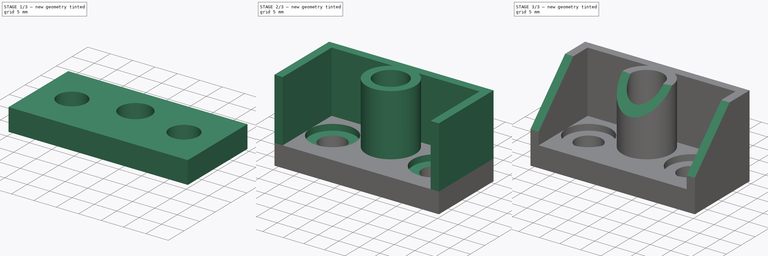
[diagram: build sequence overview — one tinted view per stage of 3, left to right]
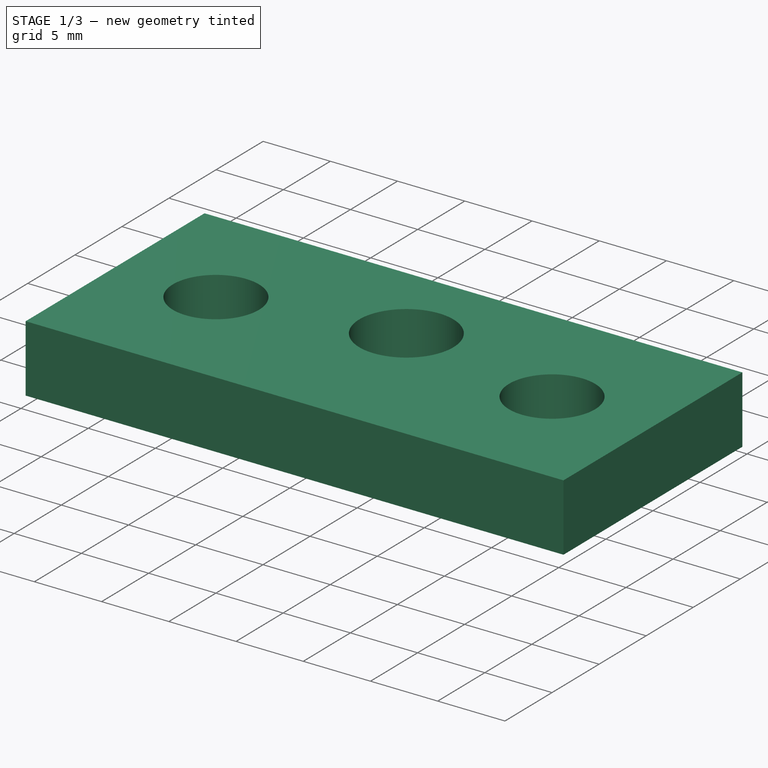
[diagram: stage 1 of 3 — iso view after this stage's code; geometry added in this stage tinted green]
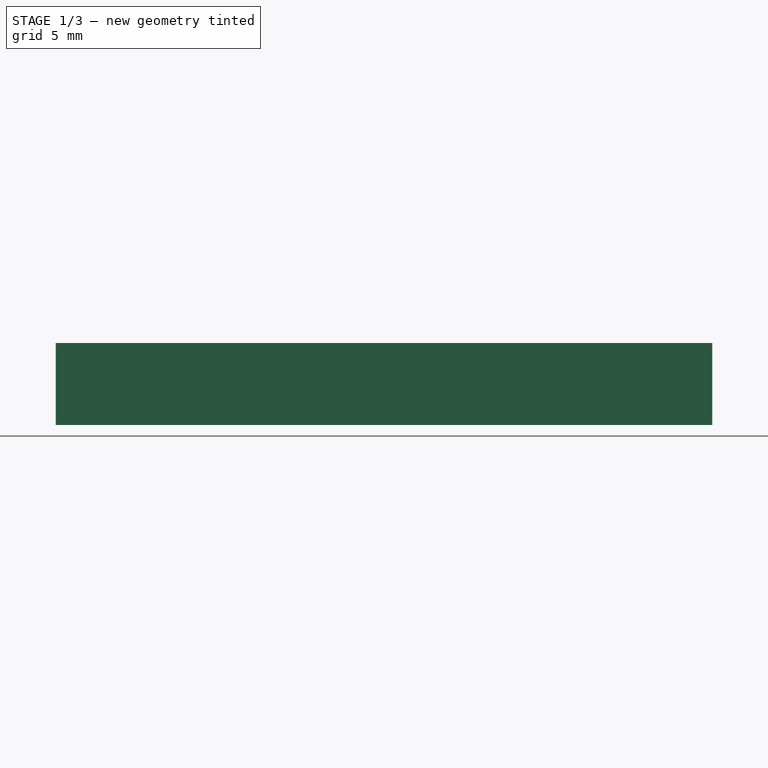
[diagram: stage 1 of 3 — front view after this stage's code; geometry added in this stage tinted green]
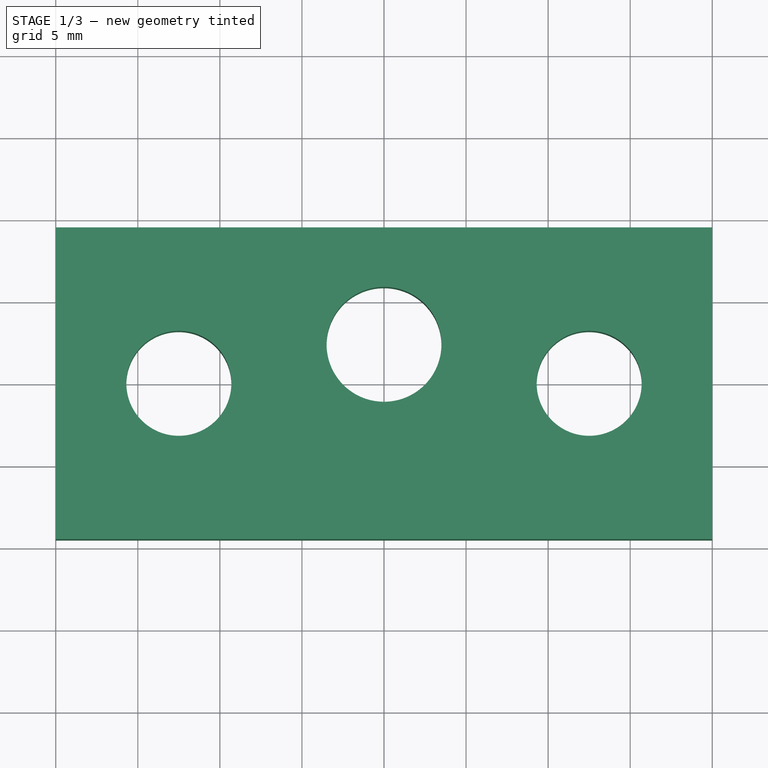
[diagram: stage 1 of 3 — top view after this stage's code; geometry added in this stage tinted green]
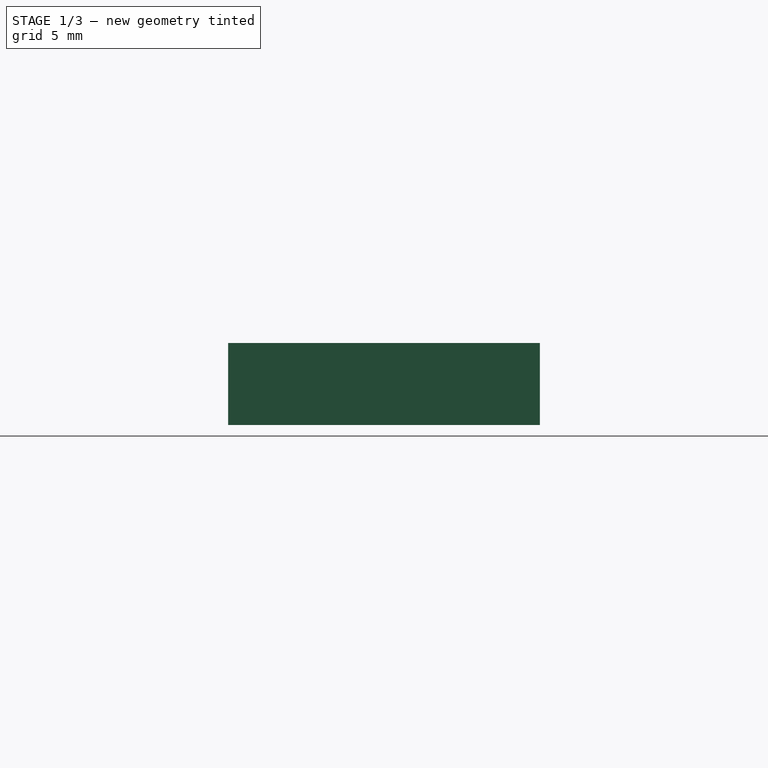
[diagram: stage 1 of 3 — right view after this stage's code; geometry added in this stage tinted green]
FCSTD DOCUMENT  (FreeCAD 0.17R7796 (Git))
Label: clamp_holder
License: CreativeCommons Attribution-ShareAlike
LicenseURL: http://creativecommons.org/licenses/by-sa/4.0/
objects: Sketcher::SketchObject×7, PartDesign::Pocket×5, PartDesign::Pad×2, PartDesign::Body×1, Part::Feature×1
note: 23 computed .brp shape members not serialized (recipe doc carries the construction recipe); baked Part::Feature solids carry a one-line shape summary decoded from their .brp

FEATURE [Sketcher::SketchObject] Sketch
  MapMode = 5
  Support = -> [XY_Plane]
  sketch-geometry (4):
    g0: LineSegment StartX=-20 StartY=-9.5 StartZ=0 EndX=20 EndY=-9.5 EndZ=0
    g1: LineSegment StartX=20 StartY=-9.5 StartZ=0 EndX=20 EndY=9.5 EndZ=0
    g2: LineSegment StartX=20 StartY=9.5 StartZ=0 EndX=-20 EndY=9.5 EndZ=0
    g3: LineSegment StartX=-20 StartY=9.5 StartZ=0 EndX=-20 EndY=-9.5 EndZ=0
  constraints (12):
    c: Coincident(g0,g1)
    c: Coincident(g1,g2)
    c: Coincident(g2,g3)
    c: Coincident(g3,g0)
    c: Horizontal(g0)
    c: Horizontal(g2)
    c: Vertical(g1)
    c: Vertical(g3)
    c: DistanceX(g2,g2) = 40
    c: DistanceY(g3,g3) = 19
    c: DistanceX(g2,g-1) = 20
    c: DistanceY(g-1,g2) = 9.5
FEATURE [PartDesign::Pad] Pad
  Length = 5
  Length2 = 100
  Profile = -> Sketch
  Type = 0
FEATURE [Sketcher::SketchObject] Sketch001
  MapMode = 5
  Placement = pos=(0,0,5) rot=(0,0,1;0rad)
  Support = -> [Pad]
  sketch-geometry (3):
    g0: Circle CenterX=-12.5 CenterY=0 CenterZ=0 NormalX=0 NormalY=0 NormalZ=1 Radius=3.2
    g1: Circle CenterX=12.5 CenterY=0 CenterZ=0 NormalX=0 NormalY=0 NormalZ=1 Radius=3.2
    g2: Circle CenterX=0 CenterY=2.375 CenterZ=0 NormalX=0 NormalY=0 NormalZ=1 Radius=3.5
  constraints (9):
    c: PointOnObject(g1,g-1)
    c: PointOnObject(g0,g-1)
    c: Radius(g1) = 3.2
    c: Equal(g1,g0)
    c: DistanceX(g0,g1) = 25
    c: DistanceX(g-1,g1) = 12.5
    c: DistanceY(g-1,g2) = 2.375
    c: PointOnObject(g2,g-2)
    c: Radius(g2) = 3.5
FEATURE [PartDesign::Pocket] Pocket
  BaseFeature = -> Pad
  Length = 5
  Profile = -> Sketch001
  Type = 0
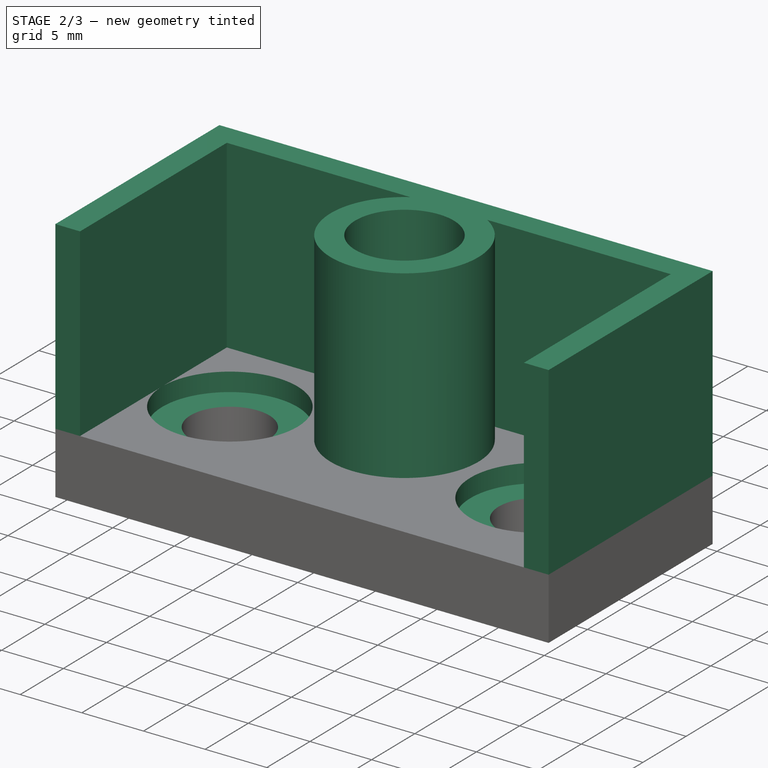
[diagram: stage 2 of 3 — iso view after this stage's code; geometry added in this stage tinted green]
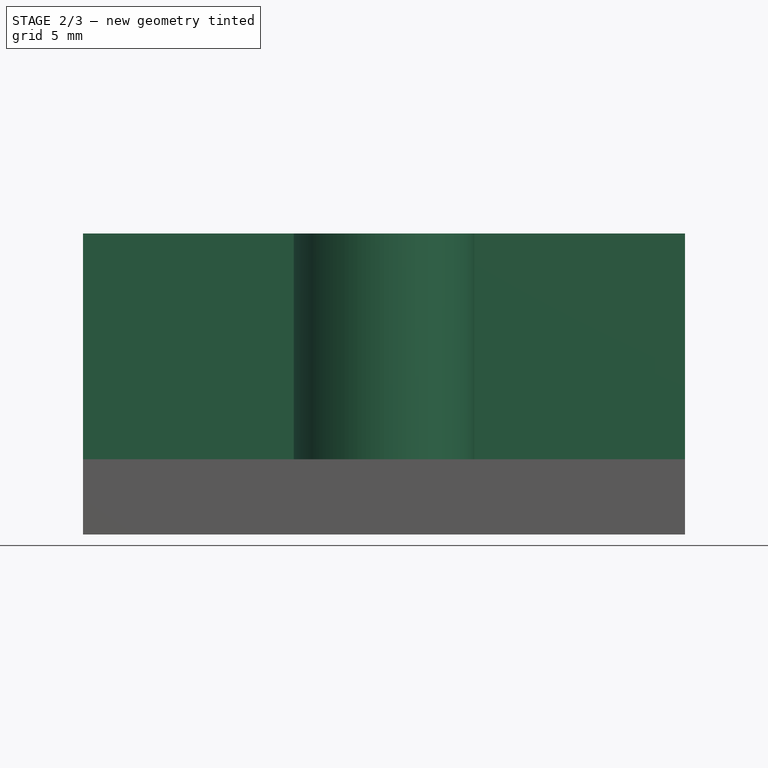
[diagram: stage 2 of 3 — front view after this stage's code; geometry added in this stage tinted green]
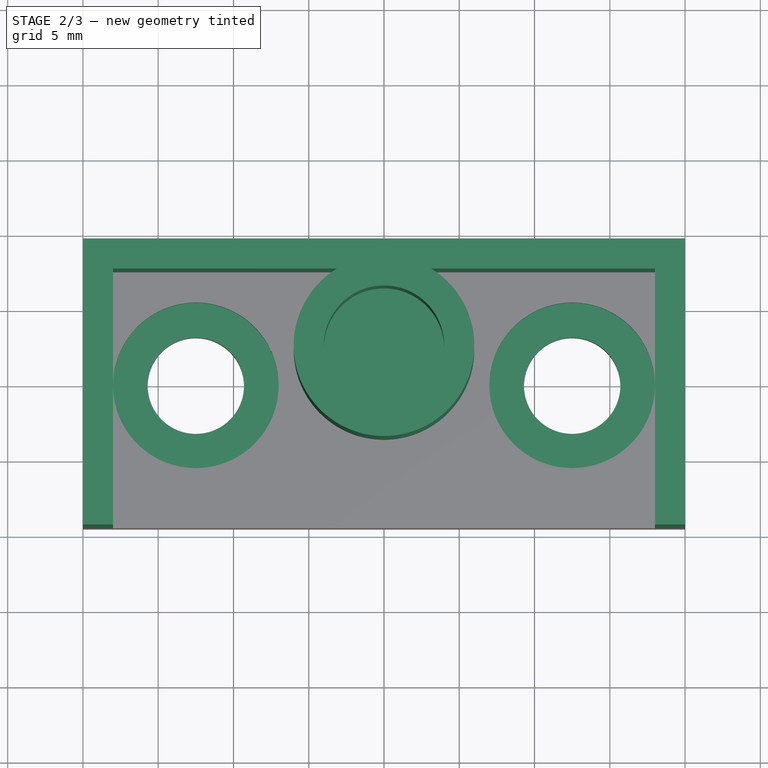
[diagram: stage 2 of 3 — top view after this stage's code; geometry added in this stage tinted green]
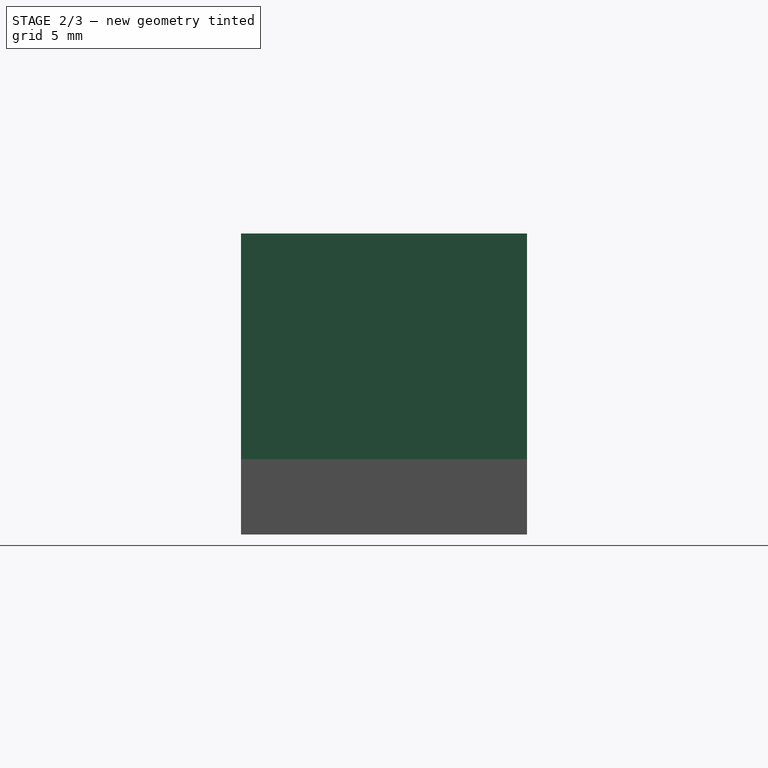
[diagram: stage 2 of 3 — right view after this stage's code; geometry added in this stage tinted green]
FEATURE [Sketcher::SketchObject] Sketch002
  ExternalGeometry = -> [Pocket]
  MapMode = 5
  Placement = pos=(0,0,5) rot=(0,0,1;0rad)
  Support = -> [Pocket]
  sketch-geometry (2):
    g0: Circle CenterX=-12.5 CenterY=0 CenterZ=0 NormalX=0 NormalY=0 NormalZ=1 Radius=5.5
    g1: Circle CenterX=12.5 CenterY=0 CenterZ=0 NormalX=0 NormalY=0 NormalZ=1 Radius=5.5
  constraints (4):
    c: Coincident(g1,g-4)
    c: Coincident(g0,g-3)
    c: Radius(g1) = 5.5
    c: Equal(g1,g0)
FEATURE [PartDesign::Pocket] Pocket001
  BaseFeature = -> Pocket
  Length = 1.5
  Profile = -> Sketch002
  Type = 0
FEATURE [Sketcher::SketchObject] Sketch003
  ExternalGeometry = -> [Pocket001]
  MapMode = 5
  Placement = pos=(0,0,5) rot=(0,0,1;0rad)
  Support = -> [Pocket001]
  sketch-geometry (10):
    g0: LineSegment StartX=-20 StartY=9.5 StartZ=0 EndX=-20 EndY=-9.5 EndZ=0
    g1: LineSegment StartX=-20 StartY=-9.5 StartZ=0 EndX=-18 EndY=-9.5 EndZ=0
    g2: LineSegment StartX=-18 StartY=-9.5 StartZ=0 EndX=-18 EndY=7.5 EndZ=0
    g3: LineSegment StartX=-18 StartY=7.5 StartZ=0 EndX=-3.12 EndY=7.5 EndZ=0
    g4: LineSegment StartX=18 StartY=7.5 StartZ=0 EndX=18 EndY=-9.5 EndZ=0
    g5: LineSegment StartX=18 StartY=-9.5 StartZ=0 EndX=20 EndY=-9.5 EndZ=0
    g6: LineSegment StartX=20 StartY=-9.5 StartZ=0 EndX=20 EndY=9.5 EndZ=0
    g7: LineSegment StartX=20 StartY=9.5 StartZ=0 EndX=-20 EndY=9.5 EndZ=0
    g8: ArcOfCircle CenterX=0 CenterY=2.375 CenterZ=0 NormalX=0 NormalY=0 NormalZ=1 Radius=6 StartAngle=2.11765 EndAngle=7.30713
    g9: LineSegment StartX=3.12 StartY=7.5 StartZ=0 EndX=18 EndY=7.5 EndZ=0
  constraints (28):
    c: Vertical(g0)
    c: Coincident(g0,g1)
    c: Horizontal(g1)
    c: Coincident(g1,g2)
    c: Vertical(g2)
    c: Coincident(g2,g3)
    c: Horizontal(g3)
    c: Coincident(g9,g4)
    c: Vertical(g4)
    c: Coincident(g4,g5)
    c: Coincident(g5,g6)
    c: Coincident(g6,g7)
    c: Horizontal(g7)
    c: Coincident(g0,g7)
    c: Coincident(g0,g-4)
    c: Coincident(g0,g-3)
    c: Coincident(g6,g-3)
    c: Vertical(g6)
    c: Horizontal(g5)
    c: Coincident(g5,g-4)
    c: DistanceX(g0,g1) = 2
    c: DistanceX(g4,g5) = 2
    c: DistanceY(g2,g0) = 2
    c: Coincident(g8,g-5)
    c: Radius(g8) = 6
    c: Coincident(g3,g8)
    c: Coincident(g9,g8)
    c: Tangent(g3,g9)
FEATURE [PartDesign::Pad] Pad001
  BaseFeature = -> Pocket001
  Length = 15
  Length2 = 100
  Profile = -> Sketch003
  Type = 0
FEATURE [Sketcher::SketchObject] Sketch004
  ExternalGeometry = -> [Pad001]
  MapMode = 5
  Placement = pos=(0,0,20) rot=(0,0,1;0rad)
  Support = -> [Pad001]
  sketch-geometry (1):
    g0: Circle CenterX=0 CenterY=2.375 CenterZ=0 NormalX=0 NormalY=0 NormalZ=1 Radius=4
  constraints (2):
    c: Coincident(g0,g-3)
    c: Radius(g0) = 4
FEATURE [PartDesign::Pocket] Pocket002
  BaseFeature = -> Pad001
  Length = 11.5
  Profile = -> Sketch004
  Type = 0
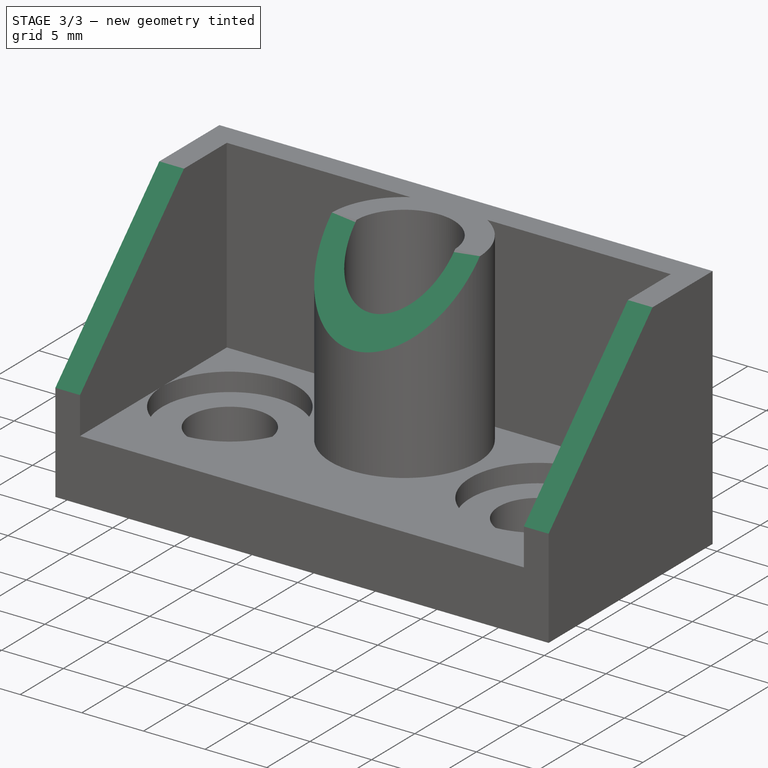
[diagram: stage 3 of 3 — iso view after this stage's code; geometry added in this stage tinted green]
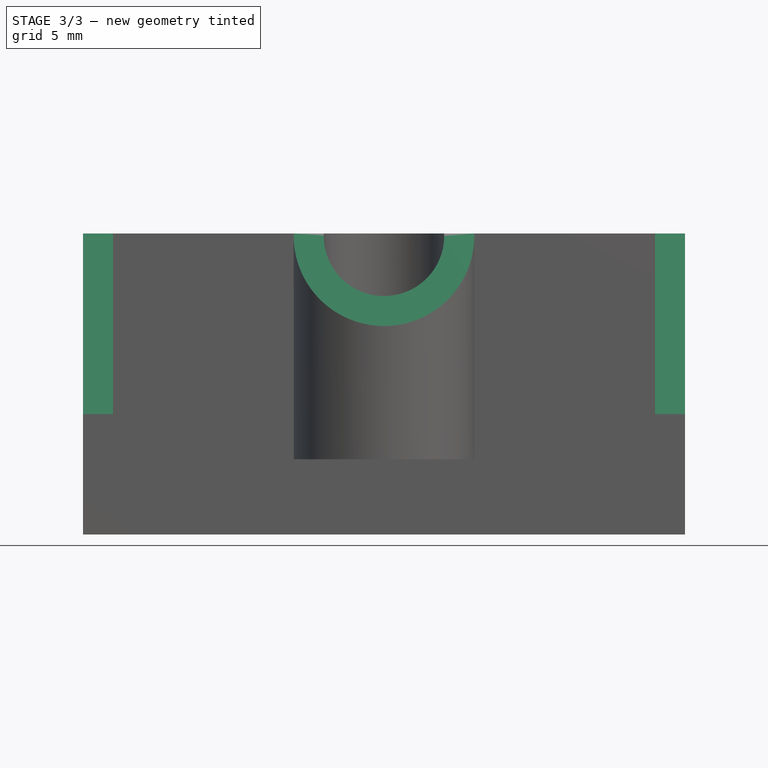
[diagram: stage 3 of 3 — front view after this stage's code; geometry added in this stage tinted green]
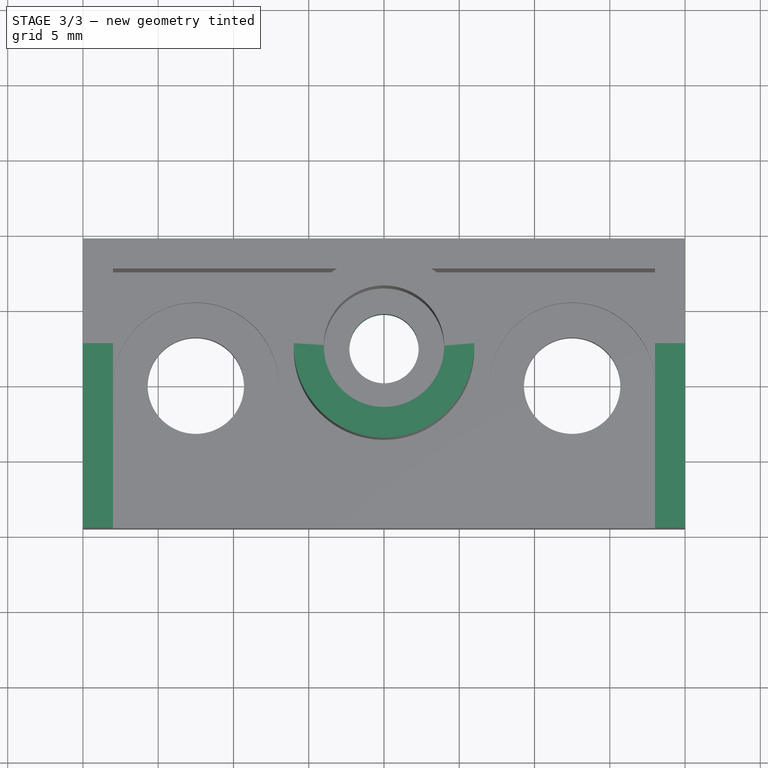
[diagram: stage 3 of 3 — top view after this stage's code; geometry added in this stage tinted green]
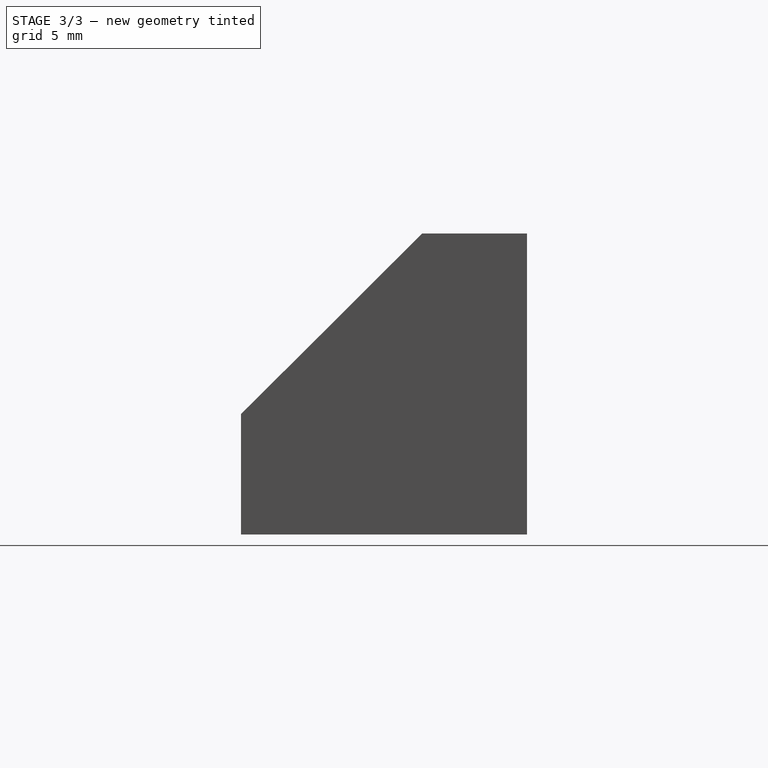
[diagram: stage 3 of 3 — right view after this stage's code; geometry added in this stage tinted green]
FEATURE [Sketcher::SketchObject] Sketch005
  ExternalGeometry = -> [Pocket002]
  MapMode = 5
  Placement = pos=(0,0,5) rot=(1,0,0;3.14159rad)
  Support = -> [Pocket002]
  sketch-geometry (1):
    g0: Circle CenterX=0 CenterY=-2.375 CenterZ=0 NormalX=0 NormalY=0 NormalZ=1 Radius=2.3
  constraints (2):
    c: Coincident(g0,g-3)
    c: Radius(g0) = 2.3
FEATURE [PartDesign::Pocket] Pocket003
  BaseFeature = -> Pocket002
  Length = 5
  Profile = -> Sketch005
  Type = 0
FEATURE [Sketcher::SketchObject] Sketch006
  ExternalGeometry = -> [Pocket003]
  MapMode = 5
  Placement = pos=(-20,0,0) rot=(0.57735,-0.57735,-0.57735;2.0944rad)
  Support = -> [Pocket003]
  sketch-geometry (3):
    g0: LineSegment StartX=-2.54159 StartY=20 StartZ=0 EndX=9.5 EndY=8 EndZ=0
    g1: LineSegment StartX=9.5 StartY=8 StartZ=0 EndX=9.5 EndY=20 EndZ=0
    g2: LineSegment StartX=9.5 StartY=20 StartZ=0 EndX=-2.54159 EndY=20 EndZ=0
  constraints (8):
    c: Coincident(g0,g1)
    c: Coincident(g1,g2)
    c: Coincident(g0,g2)
    c: Horizontal(g2)
    c: Vertical(g1)
    c: Coincident(g1,g-3)
    c: DistanceY(g1,g1) = 12
    c: Distance(g0) = 17
FEATURE [PartDesign::Pocket] Pocket004
  BaseFeature = -> Pocket003
  Length = 5
  Profile = -> Sketch006
  Type = 1
FEATURE [PartDesign::Body] Body
  Model = -> [Sketch,Pad,Sketch001,Pocket,Sketch002,Pocket001,Sketch003,Pad001,Sketch004,Pocket002,Sketch005,Pocket003,Sketch006,Pocket004]
  Origin = -> BodyOrigin
  Tip = -> Pocket004
FEATURE [Part::Feature] Pocket004001  label="Pocket005"
  shape: bbox 40 x 19 x 20 mm, 26 faces (baked)
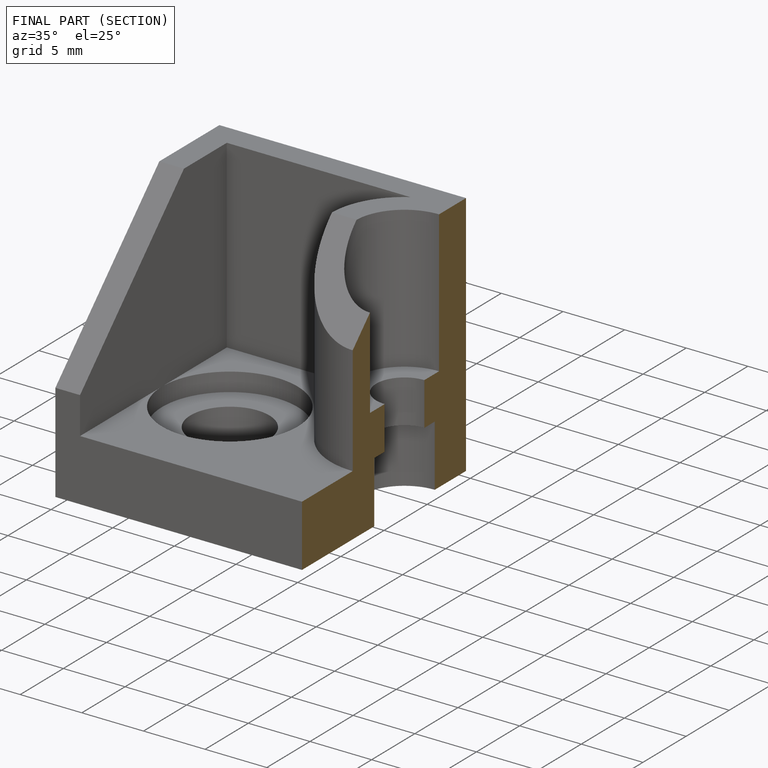
[diagram: finished part — half-section view (interior)]
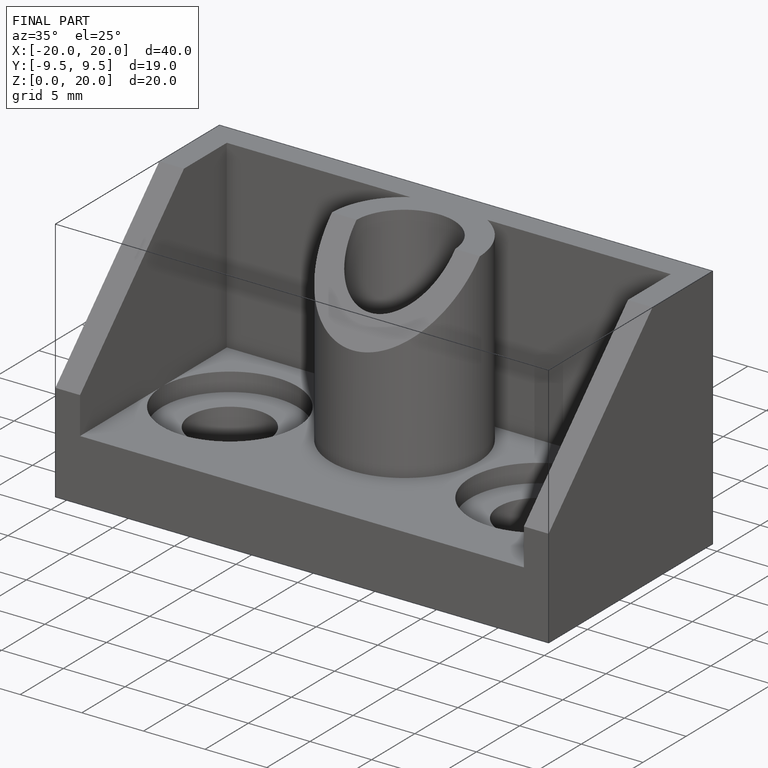
[diagram: finished part — iso view with bounding-box wireframe]
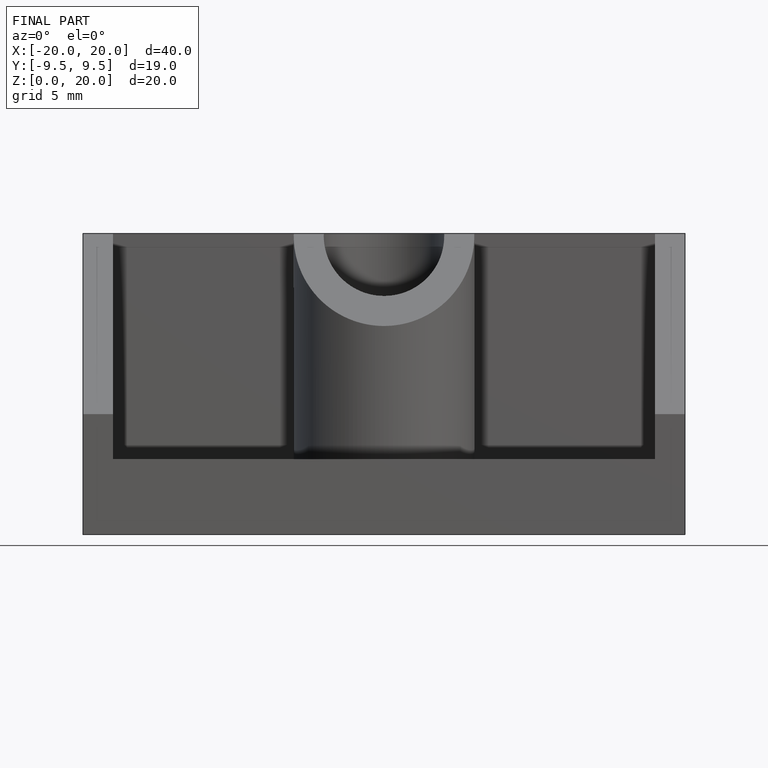
[diagram: finished part — front view with bounding-box wireframe]
